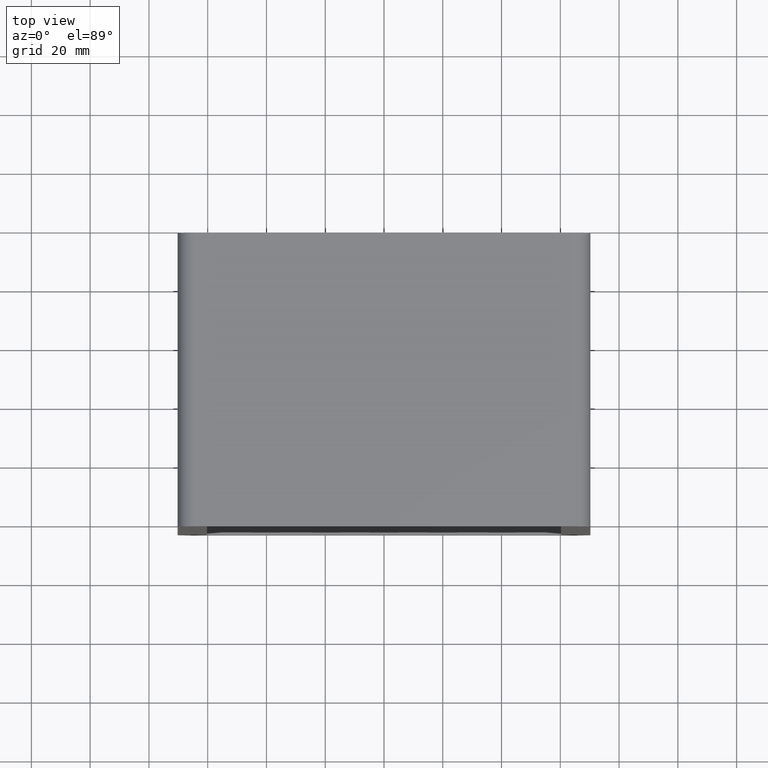
[diagram: clean part render]
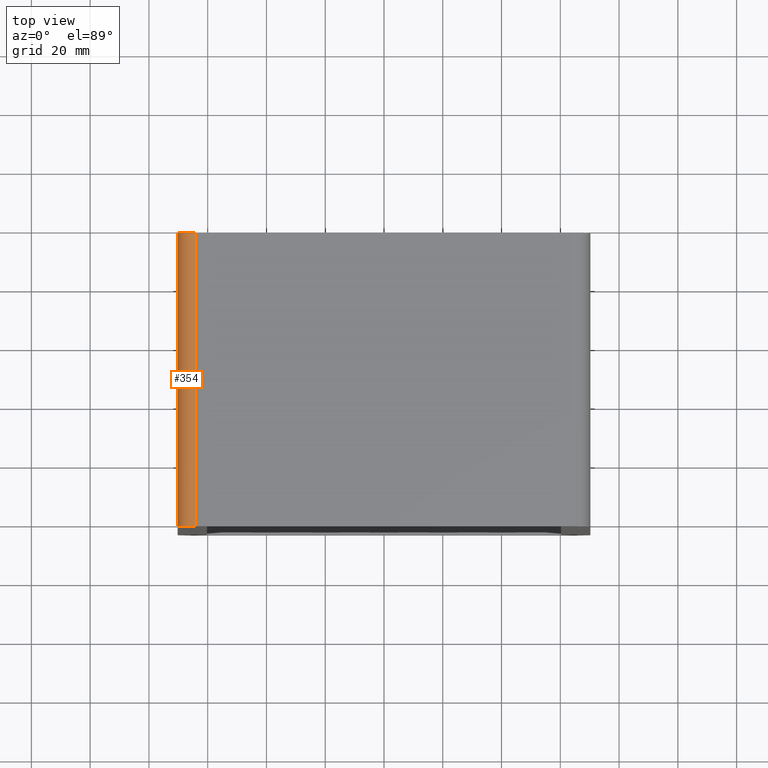
[diagram: same view with one face highlighted and labeled with its STEP entity id]
A machine part, top view. The second image highlights one B-rep face of the part: STEP entity #354.
In plain terms, the highlighted cylindrical surface (edge-blend (fillet) strip) has radius 6 mm, axis along (0, 1, 0).
Its self-contained STEP definition (entity closure, byte-faithful):
#216=CARTESIAN_POINT('',(-64.25,-3.0,89.750000000000014));
#217=VERTEX_POINT('',#216);
#224=CARTESIAN_POINT('',(-70.25,-3.0,83.75));
#225=VERTEX_POINT('',#224);
#226=CARTESIAN_POINT('',(-64.25,-3.0,83.75));
#227=DIRECTION('',(0.0,-1.0,0.0));
#228=DIRECTION('',(-1.0,0.0,0.0));
#229=AXIS2_PLACEMENT_3D('',#226,#227,#228);
#230=CIRCLE('',#229,6.000000000000001);
#231=EDGE_CURVE('',#217,#225,#230,.T.);
#312=CARTESIAN_POINT('',(-64.25,97.0,89.750000000000014));
#313=VERTEX_POINT('',#312);
#320=CARTESIAN_POINT('',(-64.25,-3.0,89.750000000000014));
#321=DIRECTION('',(0.0,1.0,0.0));
#322=VECTOR('',#321,100.0);
#323=LINE('',#320,#322);
#324=EDGE_CURVE('',#217,#313,#323,.T.);
#330=CARTESIAN_POINT('',(-64.25,0.0,83.75));
#331=DIRECTION('',(0.0,1.0,0.0));
#332=DIRECTION('',(-1.0,0.0,0.0));
#333=AXIS2_PLACEMENT_3D('',#330,#331,#332);
#334=CYLINDRICAL_SURFACE('',#333,6.000000000000001);
#335=ORIENTED_EDGE('',*,*,#324,.T.);
#336=CARTESIAN_POINT('',(-70.25,97.0,83.75));
#337=VERTEX_POINT('',#336);
#338=CARTESIAN_POINT('',(-64.25,97.0,83.75));
#339=DIRECTION('',(0.0,1.0,0.0));
#340=DIRECTION('',(-1.0,0.0,0.0));
#341=AXIS2_PLACEMENT_3D('',#338,#339,#340);
#342=CIRCLE('',#341,6.000000000000001);
#343=EDGE_CURVE('',#337,#313,#342,.T.);
#344=ORIENTED_EDGE('',*,*,#343,.F.);
#345=CARTESIAN_POINT('',(-70.25,-3.0,83.75));
#346=DIRECTION('',(0.0,1.0,0.0));
#347=VECTOR('',#346,100.0);
#348=LINE('',#345,#347);
#349=EDGE_CURVE('',#225,#337,#348,.T.);
#350=ORIENTED_EDGE('',*,*,#349,.F.);
#351=ORIENTED_EDGE('',*,*,#231,.F.);
#352=EDGE_LOOP('',(#335,#344,#350,#351));
#353=FACE_OUTER_BOUND('',#352,.T.);
#354=ADVANCED_FACE('',(#353),#334,.T.);